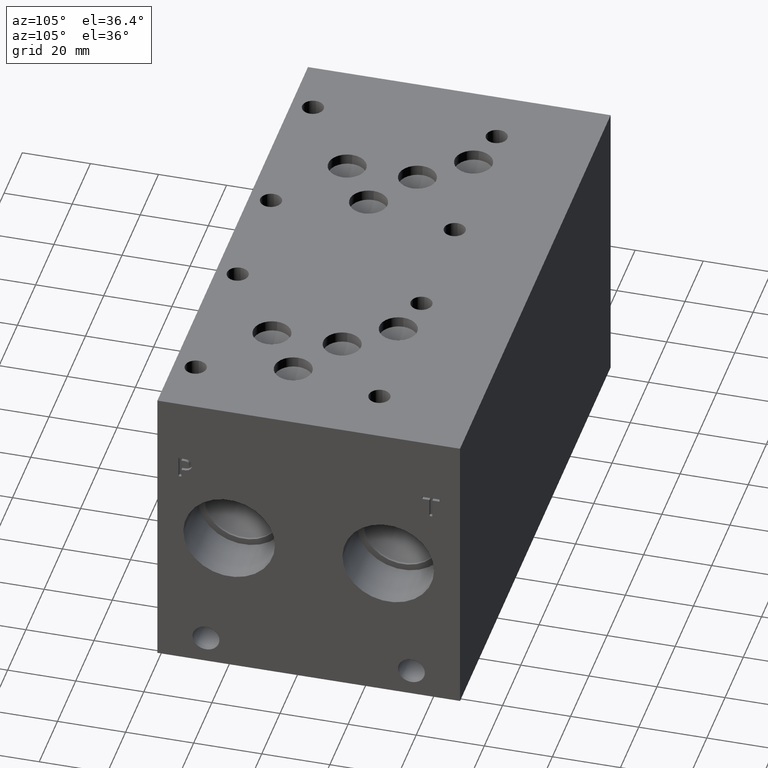
[diagram: clean part render]
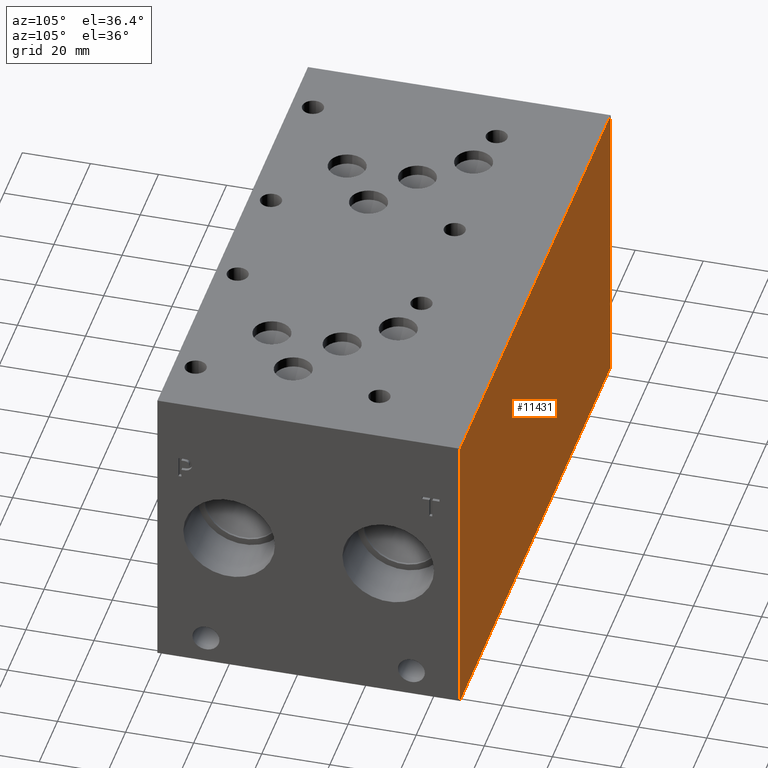
[diagram: same view with one face highlighted and labeled with its STEP entity id]
A machine part, auxiliary view. The second image highlights one B-rep face of the part: STEP entity #11431.
In plain terms, the highlighted planar face has unit normal (0, 1, 0).
Its self-contained STEP definition (entity closure, byte-faithful):
#1417=FACE_OUTER_BOUND('',#2080,.T.);
#2080=EDGE_LOOP('',(#9984,#9985,#9986,#9987));
#2947=LINE('',#18420,#4023);
#3005=LINE('',#18691,#4081);
#3175=LINE('',#19617,#4251);
#3176=LINE('',#19618,#4252);
#4023=VECTOR('',#13458,10.);
#4081=VECTOR('',#13570,10.);
#4251=VECTOR('',#14336,10.);
#4252=VECTOR('',#14337,10.);
#5017=VERTEX_POINT('',#18416);
#5018=VERTEX_POINT('',#18418);
#5075=VERTEX_POINT('',#18688);
#5076=VERTEX_POINT('',#18690);
#6467=EDGE_CURVE('',#5017,#5018,#2947,.T.);
#6549=EDGE_CURVE('',#5075,#5076,#3005,.T.);
#6902=EDGE_CURVE('',#5075,#5017,#3175,.T.);
#6903=EDGE_CURVE('',#5076,#5018,#3176,.T.);
#9984=ORIENTED_EDGE('',*,*,#6902,.T.);
#9985=ORIENTED_EDGE('',*,*,#6467,.T.);
#9986=ORIENTED_EDGE('',*,*,#6903,.F.);
#9987=ORIENTED_EDGE('',*,*,#6549,.F.);
#10385=PLANE('',#12051);
#11431=ADVANCED_FACE('',(#1417),#10385,.T.);
#12051=AXIS2_PLACEMENT_3D('',#19616,#14334,#14335);
#13458=DIRECTION('',(0.,0.,1.));
#13570=DIRECTION('',(0.,0.,1.));
#14334=DIRECTION('center_axis',(0.,1.,0.));
#14335=DIRECTION('ref_axis',(-1.,0.,0.));
#14336=DIRECTION('',(-1.,0.,0.));
#14337=DIRECTION('',(-1.,0.,0.));
#18416=CARTESIAN_POINT('',(0.,88.9,0.));
#18418=CARTESIAN_POINT('',(0.,88.9,88.9));
#18420=CARTESIAN_POINT('',(0.,88.9,0.));
#18688=CARTESIAN_POINT('',(165.1,88.9,0.));
#18690=CARTESIAN_POINT('',(165.1,88.9,88.9));
#18691=CARTESIAN_POINT('',(165.1,88.9,0.));
#19616=CARTESIAN_POINT('Origin',(165.1,88.9,0.));
#19617=CARTESIAN_POINT('',(165.1,88.9,0.));
#19618=CARTESIAN_POINT('',(165.1,88.9,88.9));